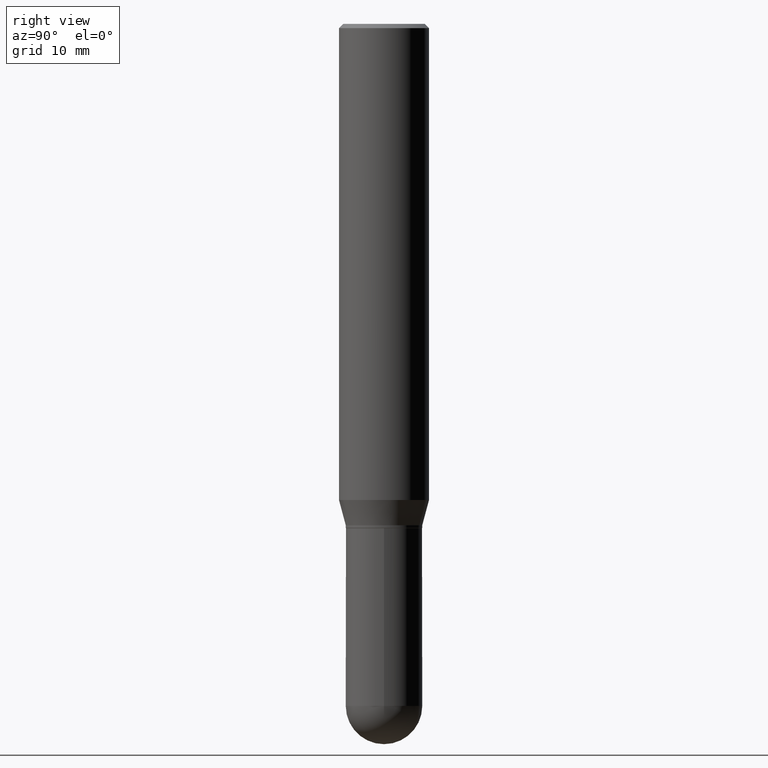
[diagram: clean part render]
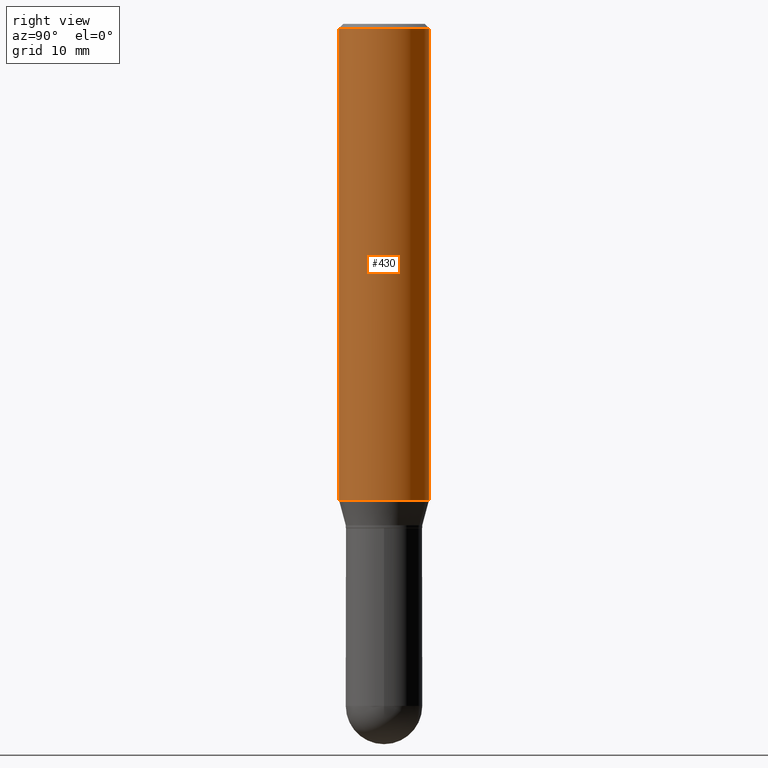
[diagram: same view with one face highlighted and labeled with its STEP entity id]
A machine part, right view. The second image highlights one B-rep face of the part: STEP entity #430.
In plain terms, the highlighted cylindrical surface (partial cylindrical patch) has radius 3.9688 mm, axis along (-0, 0, 1).
Its self-contained STEP definition (entity closure, byte-faithful):
#24 = EDGE_CURVE ( 'NONE', #410, #476, #422, .T. ) ;
#55 = CARTESIAN_POINT ( 'NONE',  ( -1.091087918388478779E-15, -0.1562500000000000833, -0.01499999999999957270 ) ) ;
#57 = DIRECTION ( 'NONE',  ( -6.982962677686265133E-15, -1.000000000000000000, 3.496765431890256920E-15 ) ) ;
#59 = VERTEX_POINT ( 'NONE', #507 ) ;
#73 = DIRECTION ( 'NONE',  ( -2.445345981516174728E-29, 3.491657230759845150E-15, 1.000000000000000000 ) ) ;
#82 = CIRCLE ( 'NONE', #112, 0.1562500000000000000 ) ;
#112 = AXIS2_PLACEMENT_3D ( 'NONE', #139, #176, #57 ) ;
#119 = AXIS2_PLACEMENT_3D ( 'NONE', #252, #443, #405 ) ;
#126 = EDGE_CURVE ( 'NONE', #334, #476, #313, .T. ) ;
#137 = EDGE_LOOP ( 'NONE', ( #294, #199, #436, #330 ) ) ;
#139 = CARTESIAN_POINT ( 'NONE',  ( 4.040893662650484350E-29, -5.769905642217962811E-15, -1.652483408562509748 ) ) ;
#176 = DIRECTION ( 'NONE',  ( -2.445345981516174728E-29, 3.491657230759845150E-15, 1.000000000000000000 ) ) ;
#190 = VECTOR ( 'NONE', #469, 39.37007874015748143 ) ;
#199 = ORIENTED_EDGE ( 'NONE', *, *, #24, .T. ) ;
#224 = DIRECTION ( 'NONE',  ( -6.982962677686265133E-15, -1.000000000000000000, 3.496765431890256920E-15 ) ) ;
#242 = CARTESIAN_POINT ( 'NONE',  ( 1.110223024625197167E-15, 0.1562499999999942824, -1.652483408562510414 ) ) ;
#250 = CARTESIAN_POINT ( 'NONE',  ( 1.110223024625197364E-15, 0.1562499999999999445, -0.01500000000000066558 ) ) ;
#252 = CARTESIAN_POINT ( 'NONE',  ( 0.000000000000000000, 0.000000000000000000, 0.000000000000000000 ) ) ;
#294 = ORIENTED_EDGE ( 'NONE', *, *, #325, .T. ) ;
#304 = CARTESIAN_POINT ( 'NONE',  ( 1.110223024625156343E-15, 0.1562500000000000000, -5.455714423062258293E-16 ) ) ;
#313 = CIRCLE ( 'NONE', #445, 0.1562500000000000000 ) ;
#325 = EDGE_CURVE ( 'NONE', #59, #410, #82, .T. ) ;
#330 = ORIENTED_EDGE ( 'NONE', *, *, #482, .F. ) ;
#334 = VERTEX_POINT ( 'NONE', #55 ) ;
#335 = CYLINDRICAL_SURFACE ( 'NONE', #119, 0.1562500000000000000 ) ;
#340 = CARTESIAN_POINT ( 'NONE',  ( 3.668018972274291047E-31, -5.237485846139809263E-17, -0.01500000000000011914 ) ) ;
#371 = VECTOR ( 'NONE', #387, 39.37007874015748143 ) ;
#387 = DIRECTION ( 'NONE',  ( -2.445345981516174448E-29, 3.491657230759844755E-15, 1.000000000000000000 ) ) ;
#405 = DIRECTION ( 'NONE',  ( -6.982962677686265133E-15, -1.000000000000000000, 3.491657230759845150E-15 ) ) ;
#410 = VERTEX_POINT ( 'NONE', #242 ) ;
#414 = FACE_OUTER_BOUND ( 'NONE', #137, .T. ) ;
#422 = LINE ( 'NONE', #304, #371 ) ;
#427 = LINE ( 'NONE', #431, #190 ) ;
#430 = ADVANCED_FACE ( 'NONE', ( #414 ), #335, .T. ) ;
#431 = CARTESIAN_POINT ( 'NONE',  ( -1.091087918388478976E-15, -0.1562500000000000000, 5.455714423062258293E-16 ) ) ;
#436 = ORIENTED_EDGE ( 'NONE', *, *, #126, .F. ) ;
#443 = DIRECTION ( 'NONE',  ( -2.445345981516174728E-29, 3.491657230759845150E-15, 1.000000000000000000 ) ) ;
#445 = AXIS2_PLACEMENT_3D ( 'NONE', #340, #73, #224 ) ;
#469 = DIRECTION ( 'NONE',  ( -2.445345981516174448E-29, 3.491657230759844755E-15, 1.000000000000000000 ) ) ;
#476 = VERTEX_POINT ( 'NONE', #250 ) ;
#482 = EDGE_CURVE ( 'NONE', #59, #334, #427, .T. ) ;
#507 = CARTESIAN_POINT ( 'NONE',  ( -1.091087918388438547E-15, -0.1562500000000057454, -1.652483408562509304 ) ) ;